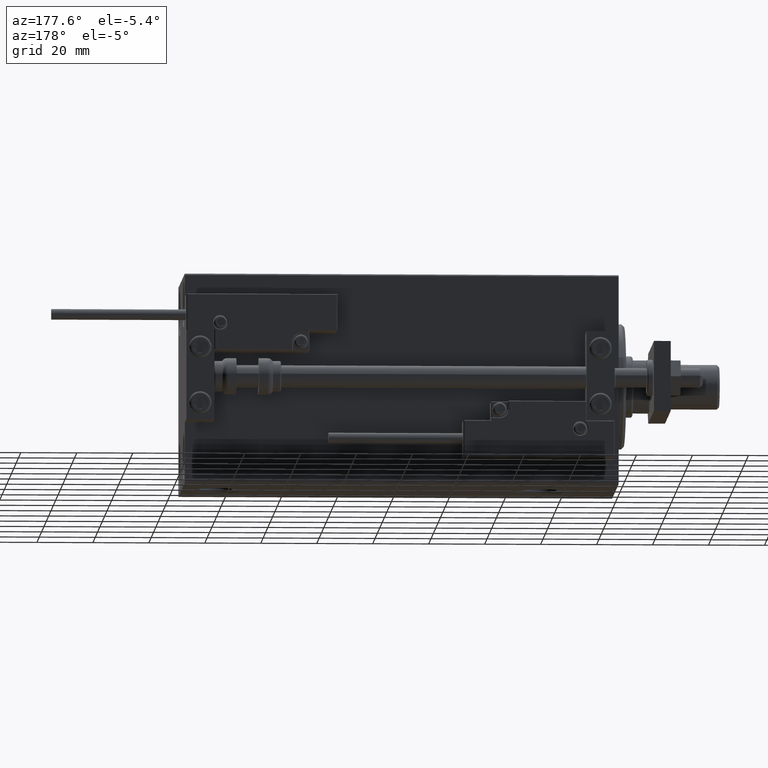
[diagram: clean part render]
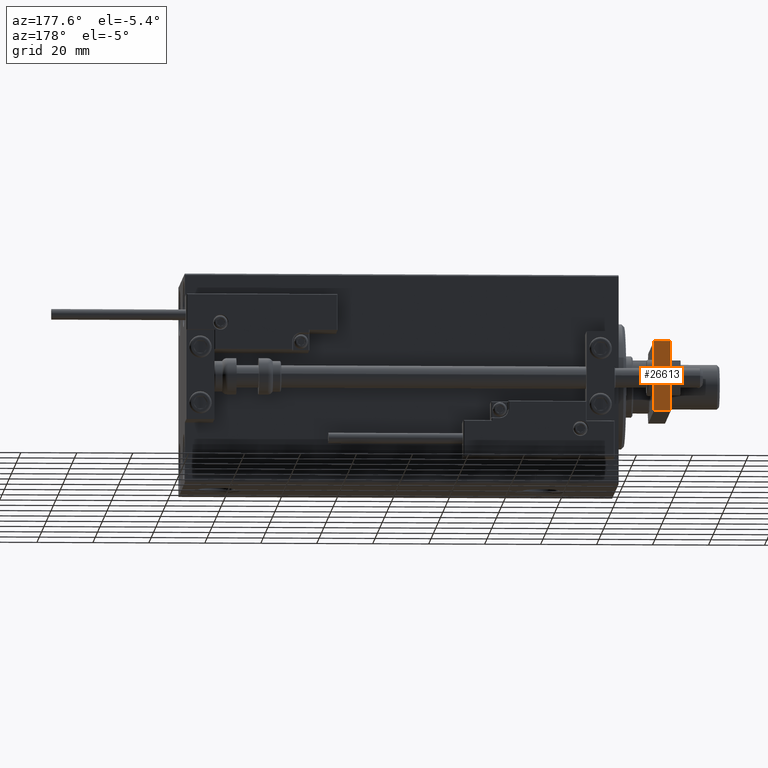
[diagram: same view with one face highlighted and labeled with its STEP entity id]
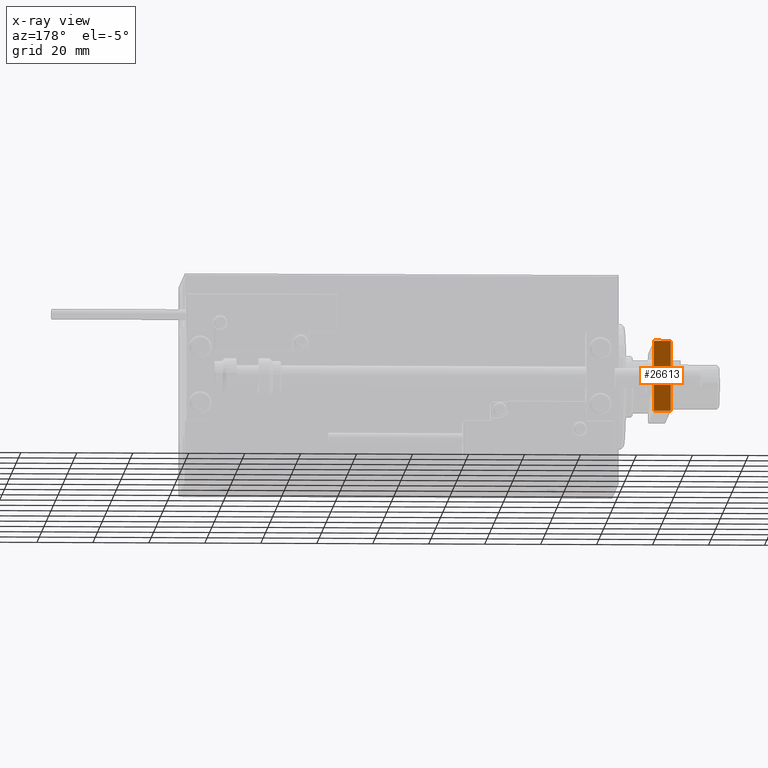
[diagram: x-ray of the same camera — body ghosted, the highlighted face saturated]
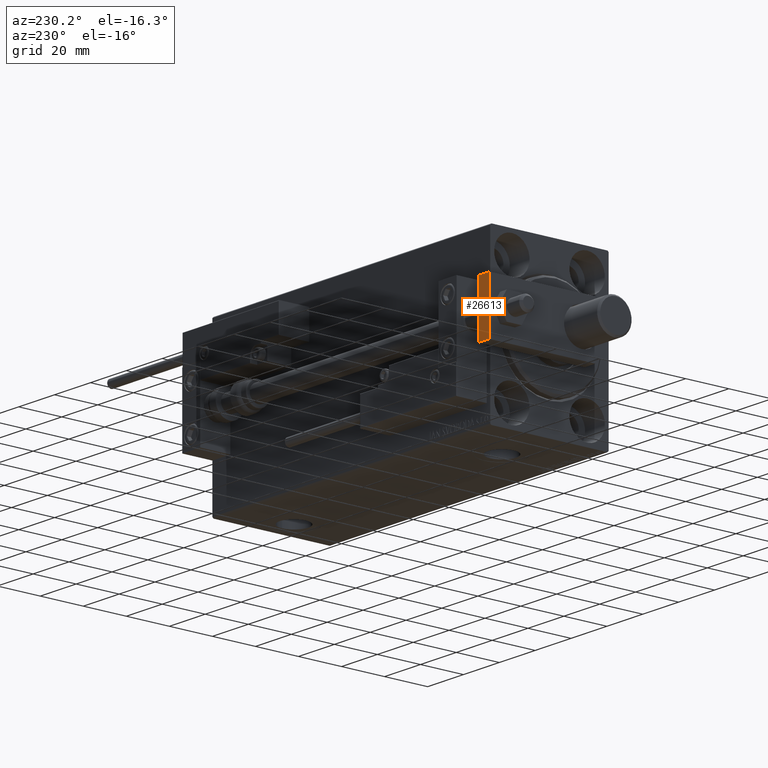
[diagram: same view with one face highlighted and labeled with its STEP entity id]
A machine part, auxiliary view. The second image highlights one B-rep face of the part: STEP entity #26613.
The next image is the same camera in x-ray: the body ghosted, the highlighted face saturated — about 0% of this face is hidden behind the body in this view.
A second angle (auxiliary view) of the same face is appended — the face is thin or edge-on in the first view.
In plain terms, the highlighted planar face has unit normal (0, -1, 0).
Its self-contained STEP definition (entity closure, byte-faithful):
#213 = VECTOR ( 'NONE', #47665, 1000.000000000000000 ) ;
#895 = ORIENTED_EDGE ( 'NONE', *, *, #26104, .F. ) ;
#7198 = CARTESIAN_POINT ( 'NONE',  ( 12.50000000000000000, 55.00000000000000000, 0.000000000000000000 ) ) ;
#9052 = CARTESIAN_POINT ( 'NONE',  ( -12.49999999999999822, 55.00000000000000000, 6.000000000000000000 ) ) ;
#9084 = CARTESIAN_POINT ( 'NONE',  ( 12.50000000000000000, 55.00000000000000000, 6.000000000000000000 ) ) ;
#10246 = CARTESIAN_POINT ( 'NONE',  ( -12.49999999999999822, 55.00000000000000000, 6.000000000000000000 ) ) ;
#13899 = PLANE ( 'NONE',  #20800 ) ;
#14343 = DIRECTION ( 'NONE',  ( -0.000000000000000000, -0.000000000000000000, -1.000000000000000000 ) ) ;
#15540 = DIRECTION ( 'NONE',  ( -0.000000000000000000, -0.000000000000000000, -1.000000000000000000 ) ) ;
#16344 = LINE ( 'NONE', #35870, #213 ) ;
#16403 = EDGE_CURVE ( 'NONE', #35060, #43505, #17532, .T. ) ;
#17532 = LINE ( 'NONE', #9084, #41874 ) ;
#19807 = VERTEX_POINT ( 'NONE', #48730 ) ;
#20104 = EDGE_CURVE ( 'NONE', #33065, #19807, #16344, .T. ) ;
#20800 = AXIS2_PLACEMENT_3D ( 'NONE', #29578, #24944, #49311 ) ;
#24944 = DIRECTION ( 'NONE',  ( 0.000000000000000000, -1.000000000000000000, 0.000000000000000000 ) ) ;
#25917 = LINE ( 'NONE', #10246, #30653 ) ;
#26104 = EDGE_CURVE ( 'NONE', #43505, #19807, #25917, .T. ) ;
#26613 = ADVANCED_FACE ( 'NONE', ( #36771 ), #13899, .F. ) ;
#29367 = DIRECTION ( 'NONE',  ( -1.000000000000000000, 0.000000000000000000, 0.000000000000000000 ) ) ;
#29578 = CARTESIAN_POINT ( 'NONE',  ( 12.50000000000000000, 55.00000000000000000, 6.000000000000000000 ) ) ;
#29761 = ORIENTED_EDGE ( 'NONE', *, *, #43118, .T. ) ;
#30384 = CARTESIAN_POINT ( 'NONE',  ( 12.50000000000000000, 55.00000000000000000, 6.000000000000000000 ) ) ;
#30653 = VECTOR ( 'NONE', #14343, 1000.000000000000000 ) ;
#33065 = VERTEX_POINT ( 'NONE', #7198 ) ;
#34084 = VECTOR ( 'NONE', #15540, 1000.000000000000000 ) ;
#35060 = VERTEX_POINT ( 'NONE', #30384 ) ;
#35064 = LINE ( 'NONE', #50721, #34084 ) ;
#35870 = CARTESIAN_POINT ( 'NONE',  ( 12.50000000000000000, 55.00000000000000000, 0.000000000000000000 ) ) ;
#36771 = FACE_OUTER_BOUND ( 'NONE', #45738, .T. ) ;
#40359 = ORIENTED_EDGE ( 'NONE', *, *, #20104, .T. ) ;
#41874 = VECTOR ( 'NONE', #29367, 1000.000000000000000 ) ;
#43118 = EDGE_CURVE ( 'NONE', #35060, #33065, #35064, .T. ) ;
#43505 = VERTEX_POINT ( 'NONE', #9052 ) ;
#45614 = ORIENTED_EDGE ( 'NONE', *, *, #16403, .F. ) ;
#45738 = EDGE_LOOP ( 'NONE', ( #40359, #895, #45614, #29761 ) ) ;
#47665 = DIRECTION ( 'NONE',  ( -1.000000000000000000, 0.000000000000000000, 0.000000000000000000 ) ) ;
#48730 = CARTESIAN_POINT ( 'NONE',  ( -12.49999999999999822, 55.00000000000000000, 0.000000000000000000 ) ) ;
#49311 = DIRECTION ( 'NONE',  ( 0.000000000000000000, -0.000000000000000000, -1.000000000000000000 ) ) ;
#50721 = CARTESIAN_POINT ( 'NONE',  ( 12.50000000000000000, 55.00000000000000000, 6.000000000000000000 ) ) ;